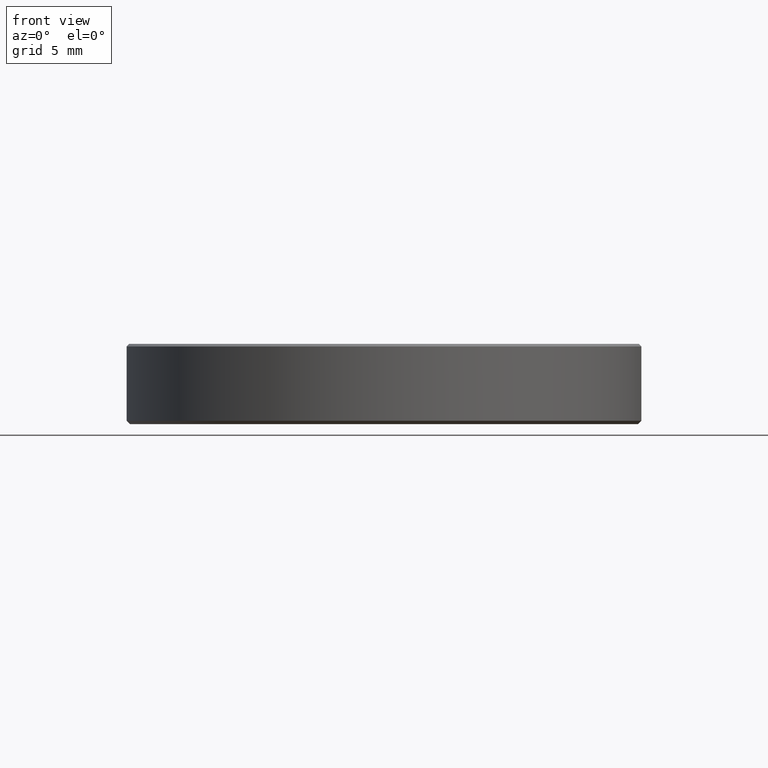
[diagram: clean part render]
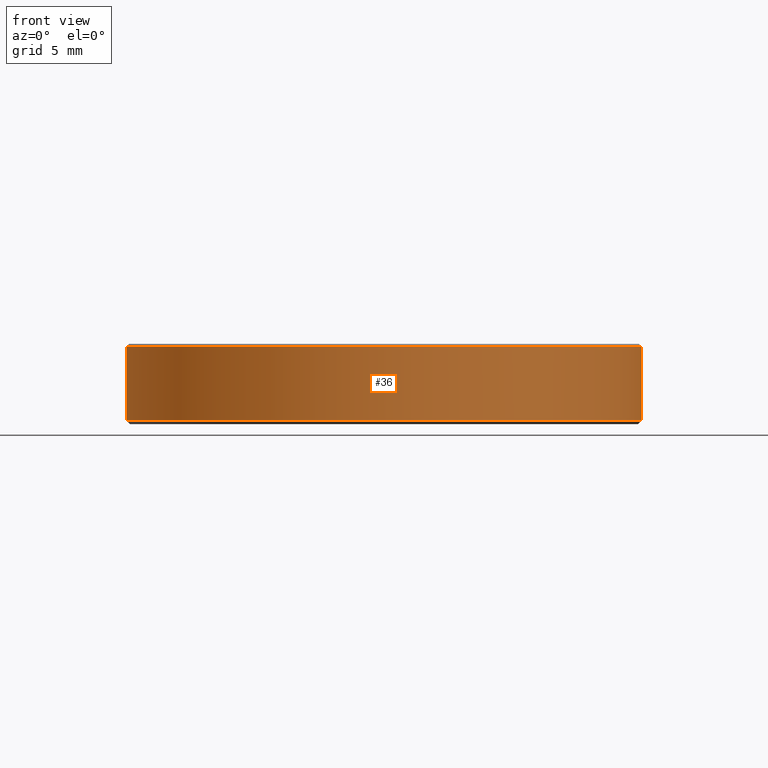
[diagram: same view with one face highlighted and labeled with its STEP entity id]
A machine part, front view. The second image highlights one B-rep face of the part: STEP entity #36.
In plain terms, the highlighted cylindrical surface (partial cylindrical patch) has radius 15 mm, axis along (-0, -0, 1).
Its self-contained STEP definition (entity closure, byte-faithful):
#2 = CIRCLE ( 'NONE', #157, 15.00000000000000000 ) ;
#12 = CARTESIAN_POINT ( 'NONE',  ( 0.000000000000000000, 0.000000000000000000, 2.500000000000000000 ) ) ;
#14 = DIRECTION ( 'NONE',  ( -0.000000000000000000, -0.000000000000000000, 1.000000000000000000 ) ) ;
#21 = CIRCLE ( 'NONE', #62, 15.00000000000000000 ) ;
#36 = ADVANCED_FACE ( 'NONE', ( #226 ), #125, .T. ) ;
#41 = EDGE_CURVE ( 'NONE', #91, #80, #21, .T. ) ;
#57 = ORIENTED_EDGE ( 'NONE', *, *, #41, .T. ) ;
#62 = AXIS2_PLACEMENT_3D ( 'NONE', #147, #75, #222 ) ;
#64 = CARTESIAN_POINT ( 'NONE',  ( -15.00000000000000000, 1.836970198721029589E-15, 4.529999999999985150 ) ) ;
#75 = DIRECTION ( 'NONE',  ( -0.000000000000000000, -0.000000000000000000, 1.000000000000000000 ) ) ;
#80 = VERTEX_POINT ( 'NONE', #171 ) ;
#81 = ORIENTED_EDGE ( 'NONE', *, *, #214, .T. ) ;
#91 = VERTEX_POINT ( 'NONE', #249 ) ;
#96 = DIRECTION ( 'NONE',  ( -1.000000000000000000, 0.000000000000000000, 0.000000000000000000 ) ) ;
#97 = EDGE_CURVE ( 'NONE', #91, #99, #211, .T. ) ;
#98 = DIRECTION ( 'NONE',  ( 1.000000000000000000, 0.000000000000000000, 0.000000000000000000 ) ) ;
#99 = VERTEX_POINT ( 'NONE', #64 ) ;
#112 = CARTESIAN_POINT ( 'NONE',  ( 15.00000000000000000, 0.000000000000000000, 4.529999999999985150 ) ) ;
#125 = CYLINDRICAL_SURFACE ( 'NONE', #178, 15.00000000000000000 ) ;
#126 = VECTOR ( 'NONE', #160, 1000.000000000000000 ) ;
#131 = CARTESIAN_POINT ( 'NONE',  ( 15.00000000000000000, 0.000000000000000000, 2.500000000000000000 ) ) ;
#132 = VECTOR ( 'NONE', #152, 1000.000000000000000 ) ;
#141 = LINE ( 'NONE', #131, #126 ) ;
#143 = ORIENTED_EDGE ( 'NONE', *, *, #97, .F. ) ;
#147 = CARTESIAN_POINT ( 'NONE',  ( 0.000000000000000000, 0.000000000000000000, 0.1999999999999996503 ) ) ;
#152 = DIRECTION ( 'NONE',  ( -0.000000000000000000, -0.000000000000000000, 1.000000000000000000 ) ) ;
#157 = AXIS2_PLACEMENT_3D ( 'NONE', #236, #219, #96 ) ;
#160 = DIRECTION ( 'NONE',  ( -0.000000000000000000, -0.000000000000000000, 1.000000000000000000 ) ) ;
#171 = CARTESIAN_POINT ( 'NONE',  ( 15.00000000000000000, 0.000000000000000000, 0.1999999999999996503 ) ) ;
#178 = AXIS2_PLACEMENT_3D ( 'NONE', #12, #14, #98 ) ;
#193 = CARTESIAN_POINT ( 'NONE',  ( -15.00000000000000000, 1.836970198721029589E-15, 2.500000000000000000 ) ) ;
#200 = EDGE_LOOP ( 'NONE', ( #143, #57, #237, #81 ) ) ;
#211 = LINE ( 'NONE', #193, #132 ) ;
#214 = EDGE_CURVE ( 'NONE', #242, #99, #2, .T. ) ;
#219 = DIRECTION ( 'NONE',  ( 0.000000000000000000, 0.000000000000000000, -1.000000000000000000 ) ) ;
#222 = DIRECTION ( 'NONE',  ( 1.000000000000000000, 0.000000000000000000, 0.000000000000000000 ) ) ;
#226 = FACE_OUTER_BOUND ( 'NONE', #200, .T. ) ;
#236 = CARTESIAN_POINT ( 'NONE',  ( 0.000000000000000000, 0.000000000000000000, 4.529999999999985150 ) ) ;
#237 = ORIENTED_EDGE ( 'NONE', *, *, #256, .T. ) ;
#242 = VERTEX_POINT ( 'NONE', #112 ) ;
#249 = CARTESIAN_POINT ( 'NONE',  ( -15.00000000000000000, 1.836970198721029589E-15, 0.1999999999999996503 ) ) ;
#256 = EDGE_CURVE ( 'NONE', #80, #242, #141, .T. ) ;